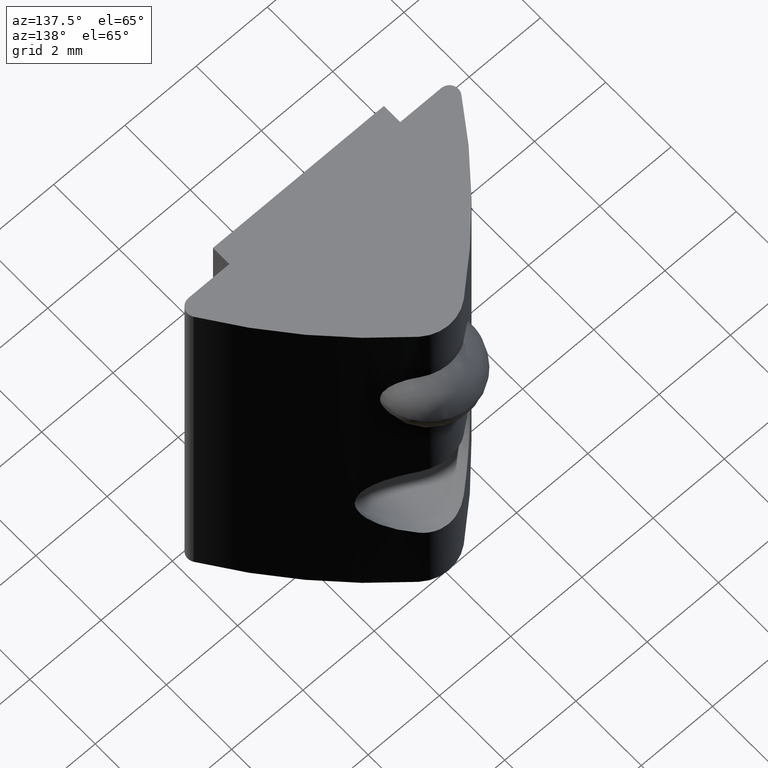
[diagram: clean part render]
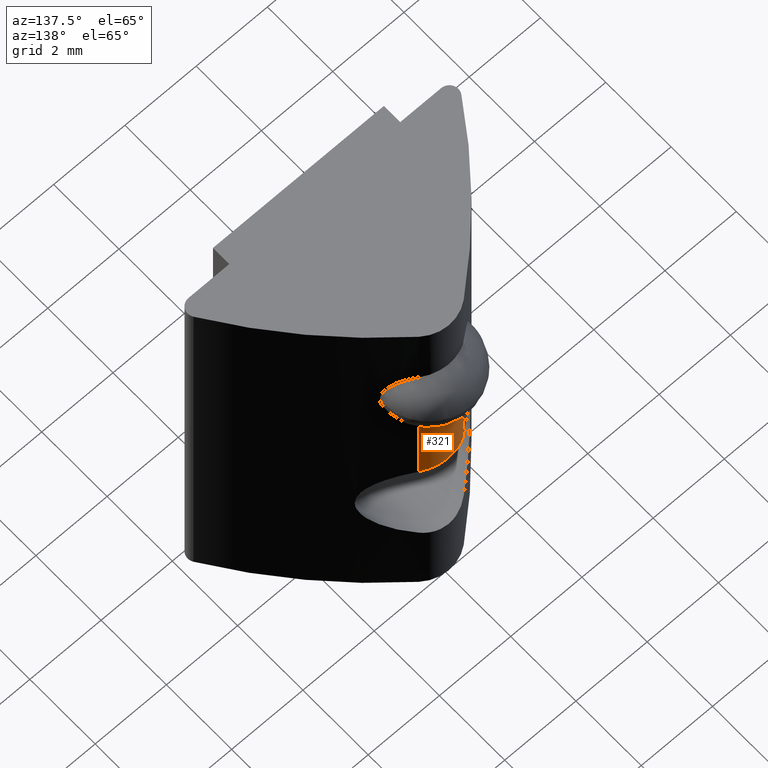
[diagram: same view with one face highlighted and labeled with its STEP entity id]
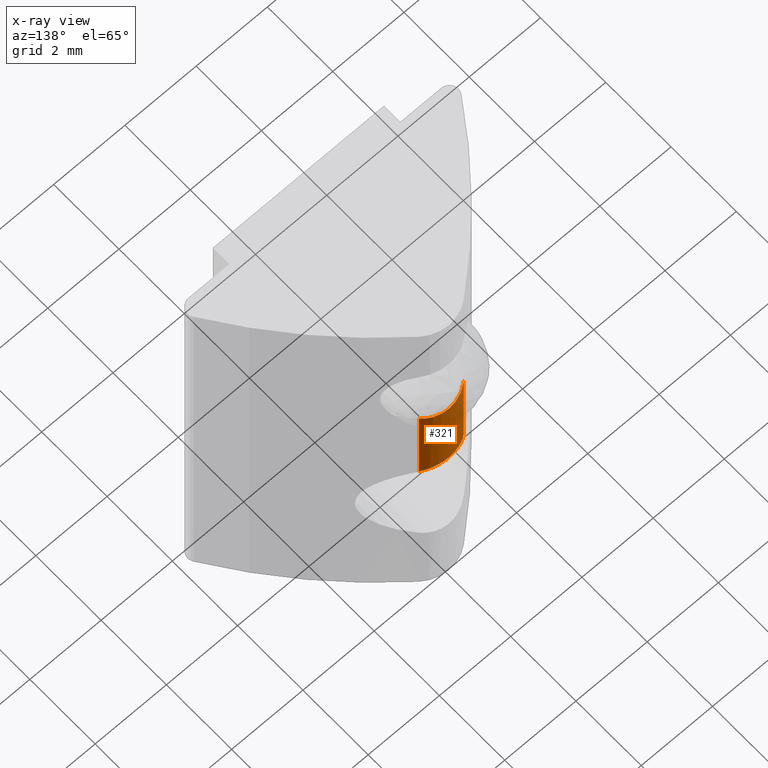
[diagram: x-ray of the same camera — body ghosted, the highlighted face saturated]
A machine part, auxiliary view. The second image highlights one B-rep face of the part: STEP entity #321.
The next image is the same camera in x-ray: the body ghosted, the highlighted face saturated — about 13% of this face is hidden behind the body in this view.
In plain terms, the highlighted cylindrical surface (partial cylindrical patch) has radius 1 mm, axis along (0, 0, 1).
Its self-contained STEP definition (entity closure, byte-faithful):
#21=LINE('',#545,#46);
#25=LINE('',#577,#50);
#46=VECTOR('',#394,10.);
#50=VECTOR('',#404,10.);
#72=CYLINDRICAL_SURFACE('',#363,1.);
#82=B_SPLINE_CURVE_WITH_KNOTS('',3,(#495,#496,#497,#498,#499,#500,#501,
#502,#503,#504,#505,#506,#507,#508),.UNSPECIFIED.,.F.,.F.,(4,2,2,2,2,2,
4),(0.177323095739884,0.193497467225048,0.218225435560753,0.242953403896458,
0.267681372232164,0.292409340567869,0.308583712053033),.UNSPECIFIED.);
#86=B_SPLINE_CURVE_WITH_KNOTS('',3,(#579,#580,#581,#582,#583,#584),
 .UNSPECIFIED.,.F.,.F.,(4,2,4),(0.0887988994654548,0.116987272487438,0.155790089731869),
 .UNSPECIFIED.);
#87=B_SPLINE_CURVE_WITH_KNOTS('',3,(#585,#586,#587,#588,#589,#590),
 .UNSPECIFIED.,.F.,.F.,(4,2,4),(0.155790089731869,0.1945929069763,0.222781279998283),
 .UNSPECIFIED.);
#94=FACE_OUTER_BOUND('',#111,.T.);
#111=EDGE_LOOP('',(#234,#235,#236,#237,#238));
#140=VERTEX_POINT('',#474);
#142=VERTEX_POINT('',#494);
#144=VERTEX_POINT('',#544);
#150=VERTEX_POINT('',#576);
#151=VERTEX_POINT('',#578);
#174=EDGE_CURVE('',#142,#140,#82,.T.);
#177=EDGE_CURVE('',#144,#142,#21,.T.);
#184=EDGE_CURVE('',#150,#140,#25,.T.);
#185=EDGE_CURVE('',#150,#151,#86,.T.);
#186=EDGE_CURVE('',#151,#144,#87,.T.);
#234=ORIENTED_EDGE('',*,*,#174,.T.);
#235=ORIENTED_EDGE('',*,*,#184,.F.);
#236=ORIENTED_EDGE('',*,*,#185,.T.);
#237=ORIENTED_EDGE('',*,*,#186,.T.);
#238=ORIENTED_EDGE('',*,*,#177,.T.);
#321=ADVANCED_FACE('',(#94),#72,.T.);
#363=AXIS2_PLACEMENT_3D('',#575,#402,#403);
#394=DIRECTION('',(0.,0.,1.));
#402=DIRECTION('center_axis',(0.,0.,1.));
#403=DIRECTION('ref_axis',(-0.63114343940598,-0.775666138808953,0.));
#404=DIRECTION('',(0.,0.,1.));
#474=CARTESIAN_POINT('',(0.631143439405981,3.87566613880895,7.98854910596354));
#494=CARTESIAN_POINT('',(-0.631143439405981,3.87566613880895,7.98854910596354));
#495=CARTESIAN_POINT('Ctrl Pts',(-0.631143439405981,3.87566613880895,7.98854910596353));
#496=CARTESIAN_POINT('Ctrl Pts',(-0.587727022182322,3.91099317646371,7.97457826946992));
#497=CARTESIAN_POINT('Ctrl Pts',(-0.541723086428686,3.94222462984948,7.96251252758535));
#498=CARTESIAN_POINT('Ctrl Pts',(-0.425378959386678,4.00863185926687,7.93715452175411));
#499=CARTESIAN_POINT('Ctrl Pts',(-0.343240498544282,4.04342928759003,7.92421447322531));
#500=CARTESIAN_POINT('Ctrl Pts',(-0.171766408803164,4.08912546852542,7.90735577006466));
#501=CARTESIAN_POINT('Ctrl Pts',(-0.0824265611190177,4.1,7.90341439002693));
#502=CARTESIAN_POINT('Ctrl Pts',(0.0824265611190179,4.1,7.90341439002693));
#503=CARTESIAN_POINT('Ctrl Pts',(0.171766408803164,4.08912546852542,7.90735577006466));
#504=CARTESIAN_POINT('Ctrl Pts',(0.343240498544282,4.04342928759003,7.92421447322531));
#505=CARTESIAN_POINT('Ctrl Pts',(0.425378959386678,4.00863185926687,7.93715452175411));
#506=CARTESIAN_POINT('Ctrl Pts',(0.541723086428685,3.94222462984948,7.96251252758535));
#507=CARTESIAN_POINT('Ctrl Pts',(0.587727022182322,3.91099317646371,7.97457826946992));
#508=CARTESIAN_POINT('Ctrl Pts',(0.631143439405981,3.87566613880895,7.98854910596353));
#544=CARTESIAN_POINT('',(-0.631143439405981,3.87566613880895,5.39308370793294));
#545=CARTESIAN_POINT('',(-0.631143439405981,3.87566613880895,0.));
#575=CARTESIAN_POINT('Origin',(0.,3.1,0.));
#576=CARTESIAN_POINT('',(0.631143439405981,3.87566613880895,5.39308370793294));
#577=CARTESIAN_POINT('',(0.631143439405981,3.87566613880895,0.));
#578=CARTESIAN_POINT('',(0.,4.1,5.521));
#579=CARTESIAN_POINT('Ctrl Pts',(0.63114343940598,3.87566613880895,5.39308370793294));
#580=CARTESIAN_POINT('Ctrl Pts',(0.559633702500536,3.93385212765568,5.42331168581638));
#581=CARTESIAN_POINT('Ctrl Pts',(0.476906400364672,3.98426258594251,5.45197835981588));
#582=CARTESIAN_POINT('Ctrl Pts',(0.264967094338513,4.07341093913773,5.50418764124347));
#583=CARTESIAN_POINT('Ctrl Pts',(0.129342724148104,4.1,5.521));
#584=CARTESIAN_POINT('Ctrl Pts',(6.93889390390723E-17,4.1,5.521));
#585=CARTESIAN_POINT('Ctrl Pts',(2.42861286636753E-16,4.1,5.521));
#586=CARTESIAN_POINT('Ctrl Pts',(-0.129342724148104,4.1,5.521));
#587=CARTESIAN_POINT('Ctrl Pts',(-0.264967094338513,4.07341093913773,5.50418764124347));
#588=CARTESIAN_POINT('Ctrl Pts',(-0.476906400364672,3.98426258594251,5.45197835981588));
#589=CARTESIAN_POINT('Ctrl Pts',(-0.559633702500536,3.93385212765568,5.42331168581638));
#590=CARTESIAN_POINT('Ctrl Pts',(-0.63114343940598,3.87566613880895,5.39308370793294));